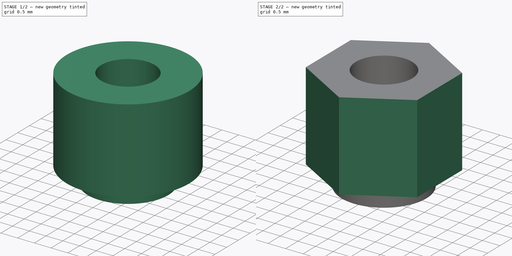
[diagram: build sequence overview — one tinted view per stage of 2, left to right]
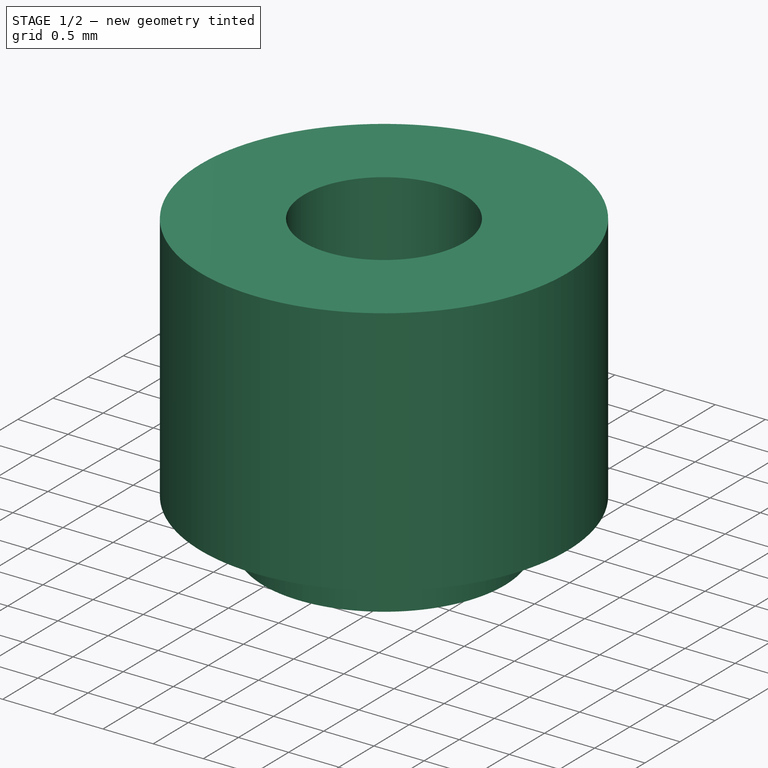
[diagram: stage 1 of 2 — iso view after this stage's code; geometry added in this stage tinted green]
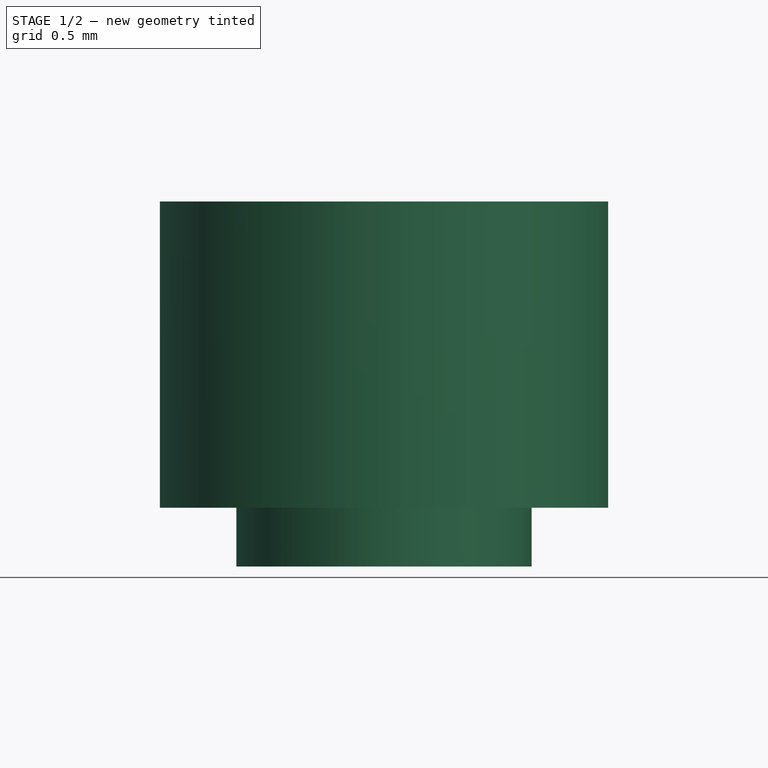
[diagram: stage 1 of 2 — front view after this stage's code; geometry added in this stage tinted green]
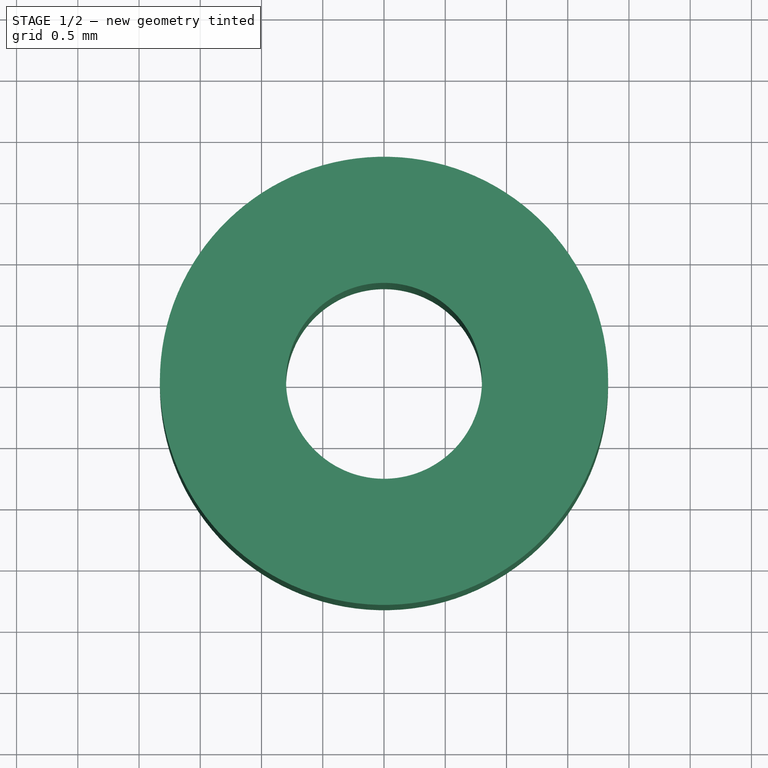
[diagram: stage 1 of 2 — top view after this stage's code; geometry added in this stage tinted green]
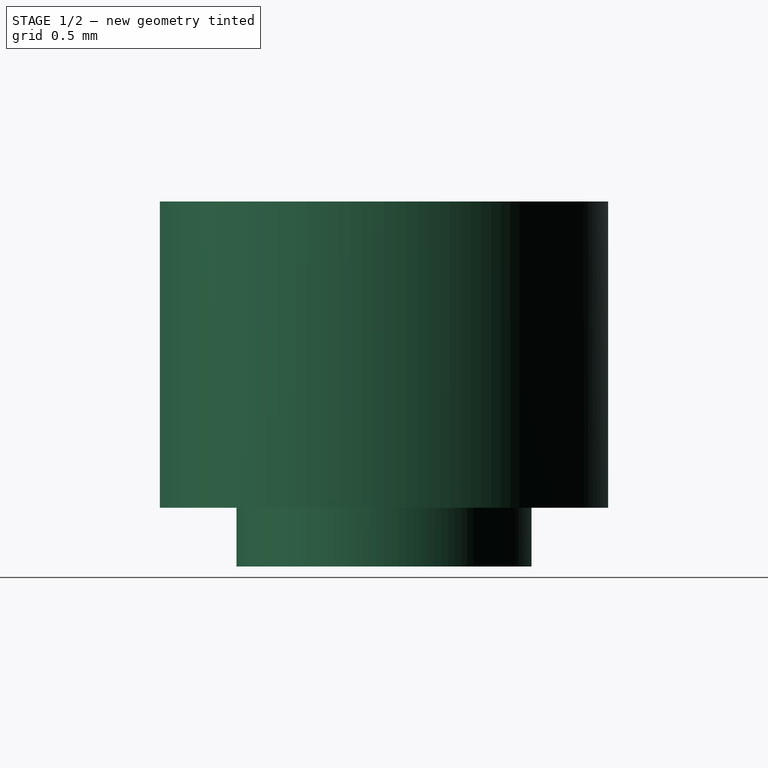
[diagram: stage 1 of 2 — right view after this stage's code; geometry added in this stage tinted green]
FCSTD DOCUMENT  (FreeCAD 0.21R33771 (Git))
Label: SMD_NUT_M1.6x2.5
License: All rights reserved
LicenseURL: https://en.wikipedia.org/wiki/All_rights_reserved
objects: Sketcher::SketchObject×2, PartDesign::Revolution×1, PartDesign::Pocket×1, PartDesign::Body×1
note: 7 computed .brp shape members not serialized (recipe doc carries the construction recipe); baked Part::Feature solids carry a one-line shape summary decoded from their .brp

FEATURE [Sketcher::SketchObject] Sketch
  FullyConstrained = true
  MapMode = 5
  Placement = pos=(0,0,0) rot=(1,0,0;1.5708rad)
  Support = -> [XZ_Plane]
  sketch-geometry (6):
    g0: LineSegment StartX=-0.8 StartY=2.5 StartZ=0 EndX=-0.8 EndY=-0.48 EndZ=0
    g1: LineSegment StartX=-0.8 StartY=-0.48 StartZ=0 EndX=-1.205 EndY=-0.48 EndZ=0
    g2: LineSegment StartX=-1.205 StartY=-0.48 StartZ=0 EndX=-1.205 EndY=0 EndZ=0
    g3: LineSegment StartX=-1.205 StartY=0 StartZ=0 EndX=-1.83 EndY=0 EndZ=0
    g4: LineSegment StartX=-1.83 StartY=0 StartZ=0 EndX=-1.83 EndY=2.5 EndZ=0
    g5: LineSegment StartX=-1.83 StartY=2.5 StartZ=0 EndX=-0.8 EndY=2.5 EndZ=0
  constraints (18):
    c: Vertical(g0)
    c: DistanceX(g0,g-1) = 0.8
    c: DistanceY(g-1,g0) = 2.5
    c: DistanceY(g0,g-1) = 0.48
    c: Coincident(g1,g0)
    c: Horizontal(g1)
    c: Coincident(g2,g1)
    c: PointOnObject(g2,g-1)
    c: Vertical(g2)
    c: Coincident(g3,g2)
    c: Coincident(g4,g3)
    c: Vertical(g4)
    c: Coincident(g5,g4)
    c: Coincident(g5,g0)
    c: Horizontal(g5)
    c: PointOnObject(g3,g-1)
    c: DistanceX(g1,g-1) = 1.205
    c: DistanceX(g3,g-1) = 1.83
FEATURE [PartDesign::Revolution] Revolution
  Angle = 360
  Axis = (0,2e-16,1)
  Base = (0,0,0)
  Placement = pos=(0,0,0) rot=(1,0,0;1.5708rad)
  Profile = -> Sketch
  ReferenceAxis = -> Sketch [V_Axis]
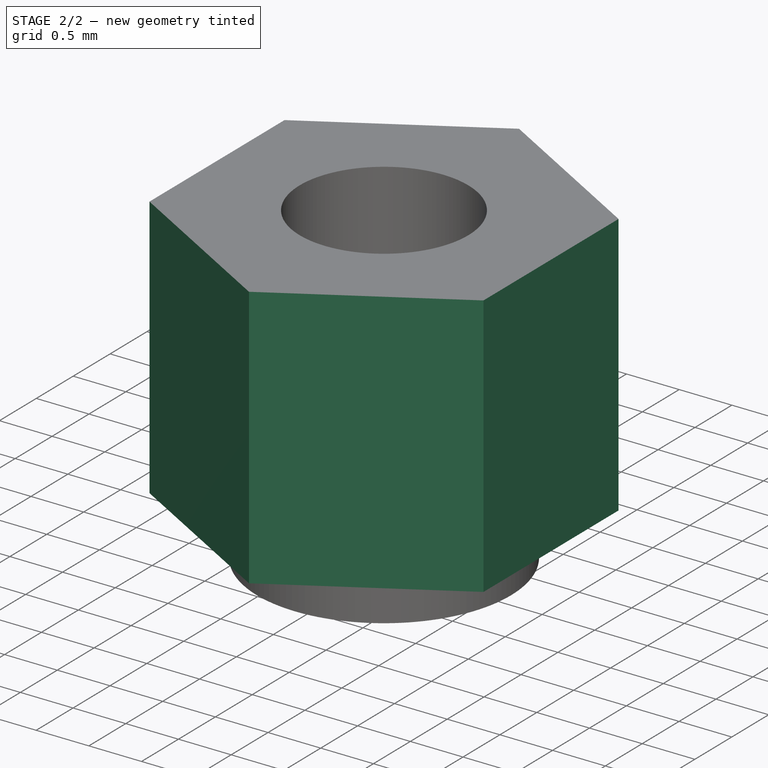
[diagram: stage 2 of 2 — iso view after this stage's code; geometry added in this stage tinted green]
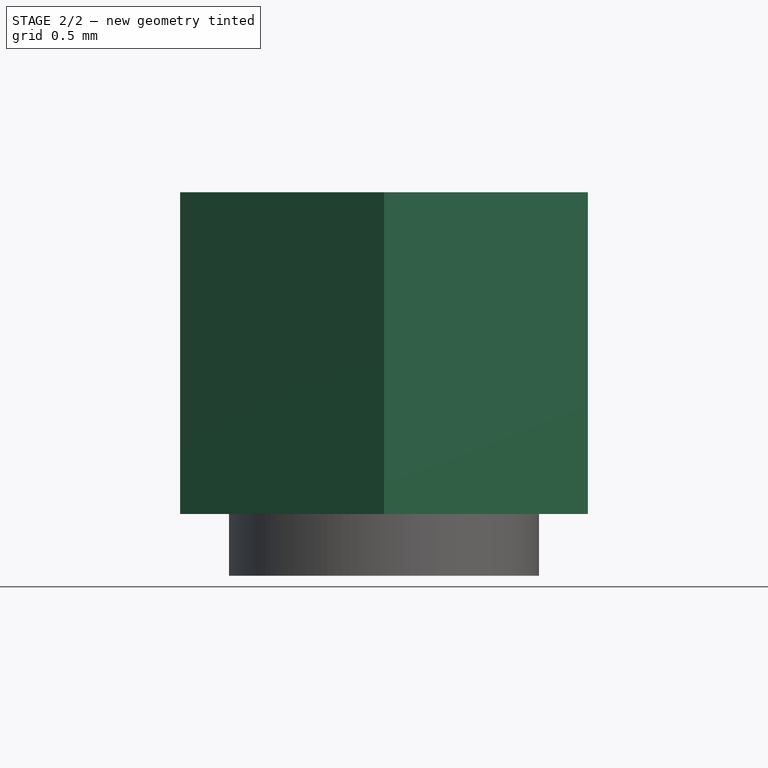
[diagram: stage 2 of 2 — front view after this stage's code; geometry added in this stage tinted green]
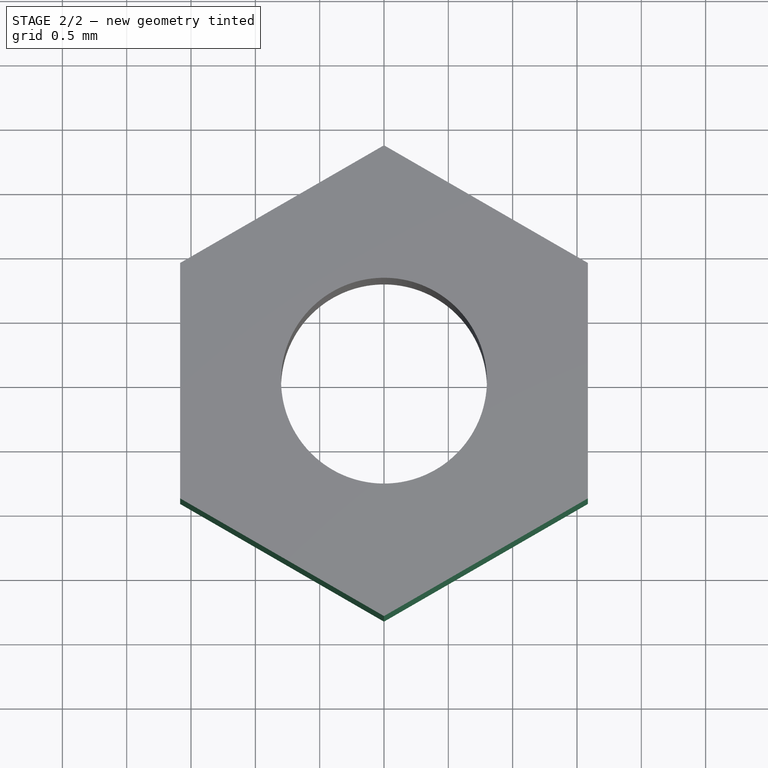
[diagram: stage 2 of 2 — top view after this stage's code; geometry added in this stage tinted green]
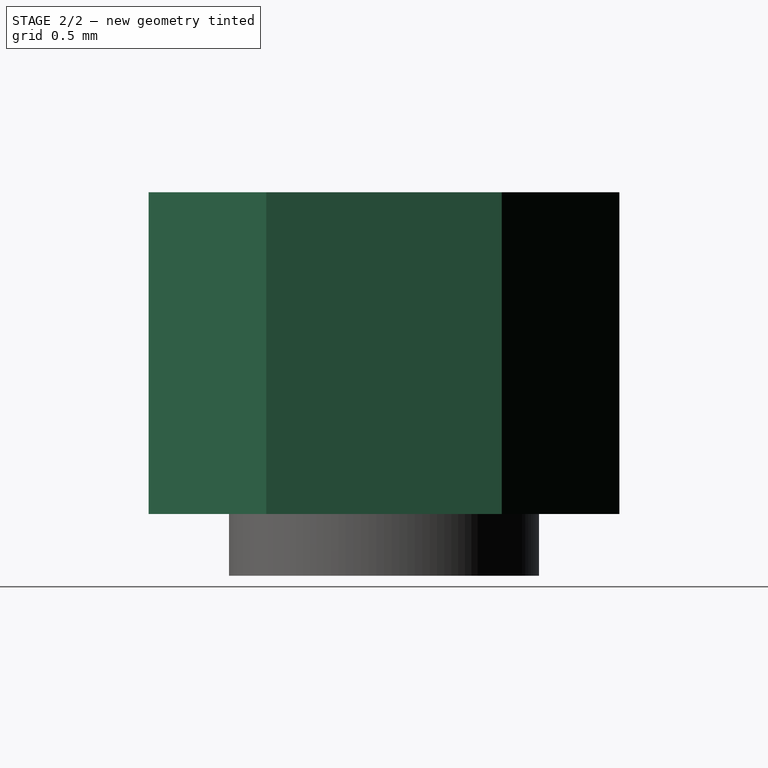
[diagram: stage 2 of 2 — right view after this stage's code; geometry added in this stage tinted green]
FEATURE [Sketcher::SketchObject] Sketch001
  FullyConstrained = true
  MapMode = 5
  Support = -> [XY_Plane]
  sketch-geometry (8):
    g0: LineSegment StartX=0 StartY=1.83 StartZ=0 EndX=-1.58483 EndY=0.915 EndZ=0
    g1: LineSegment StartX=-1.58483 StartY=0.915 StartZ=0 EndX=-1.58483 EndY=-0.915 EndZ=0
    g2: LineSegment StartX=-1.58483 StartY=-0.915 StartZ=0 EndX=0 EndY=-1.83 EndZ=0
    g3: LineSegment StartX=0 StartY=-1.83 StartZ=0 EndX=1.58483 EndY=-0.915 EndZ=0
    g4: LineSegment StartX=1.58483 StartY=-0.915 StartZ=0 EndX=1.58483 EndY=0.915 EndZ=0
    g5: LineSegment StartX=1.58483 StartY=0.915 StartZ=0 EndX=0 EndY=1.83 EndZ=0
    g6: Circle CenterX=0 CenterY=0 CenterZ=0 NormalX=0 NormalY=0 NormalZ=1 AngleXU=0 Radius=1.83
    g7: Circle CenterX=0 CenterY=0 CenterZ=0 NormalX=0 NormalY=0 NormalZ=1 AngleXU=0 Radius=3
  constraints (18):
    c: Coincident(g0,g1)
    c: Coincident(g1,g2)
    c: Coincident(g2,g3)
    c: Coincident(g3,g4)
    c: Coincident(g4,g5)
    c: Coincident(g5,g0)
    c: Equal(g0, g1-g5) x5
    c: PointOnObject(g0,g6)
    c: PointOnObject(g1,g6)
    c: PointOnObject(g2,g6)
    c: PointOnObject(g3,g6)
    c: PointOnObject(g4,g6)
    c: PointOnObject(g5,g6)
    c: Coincident(g6,g-1)
    c: PointOnObject(g5,g-2)
    c: DistanceY(g2,g0) = 3.66
    c: Coincident(g7,g6)
    c: Diameter(g7) = 6
FEATURE [PartDesign::Pocket] Pocket
  BaseFeature = -> Revolution
  Direction = (0,0,-1)
  Length = 5
  Length2 = 5
  Midplane = true
  Placement = pos=(0,0,0) rot=(1,0,0;1.5708rad)
  Profile = -> Sketch001
  ReferenceAxis = -> Sketch001 [N_Axis]
  Type = 1
FEATURE [PartDesign::Body] Body
  Group = -> [Sketch,Revolution,Sketch001,Pocket]
  Origin = -> Origin
  Tip = -> Pocket
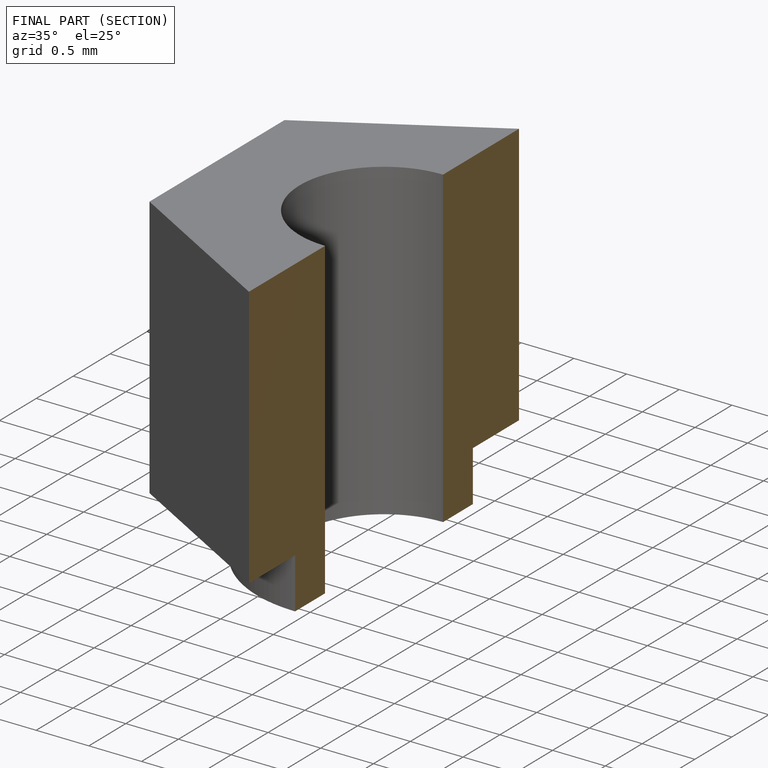
[diagram: finished part — half-section view (interior)]
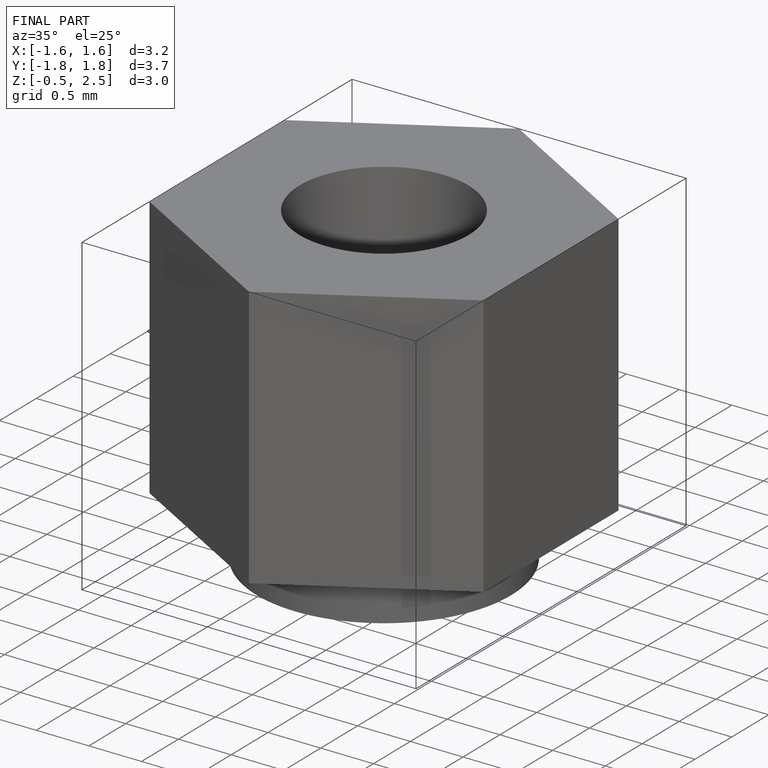
[diagram: finished part — iso view with bounding-box wireframe]
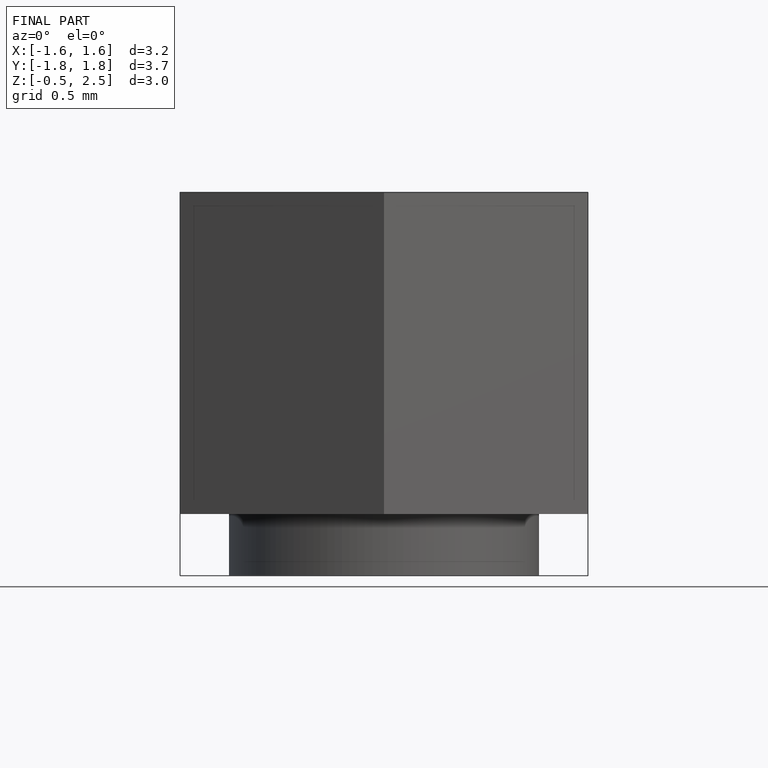
[diagram: finished part — front view with bounding-box wireframe]
